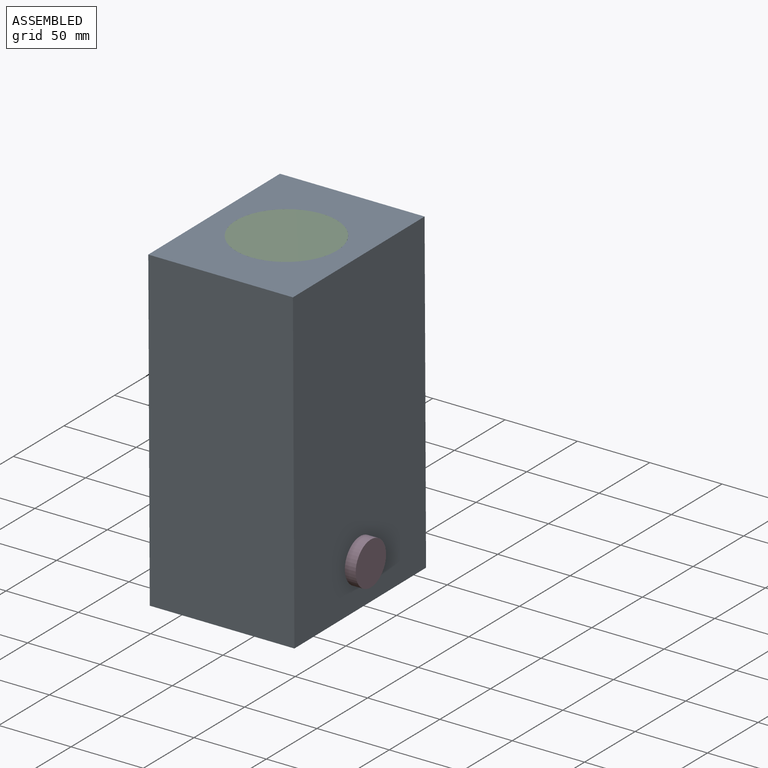
[diagram: assembled view]
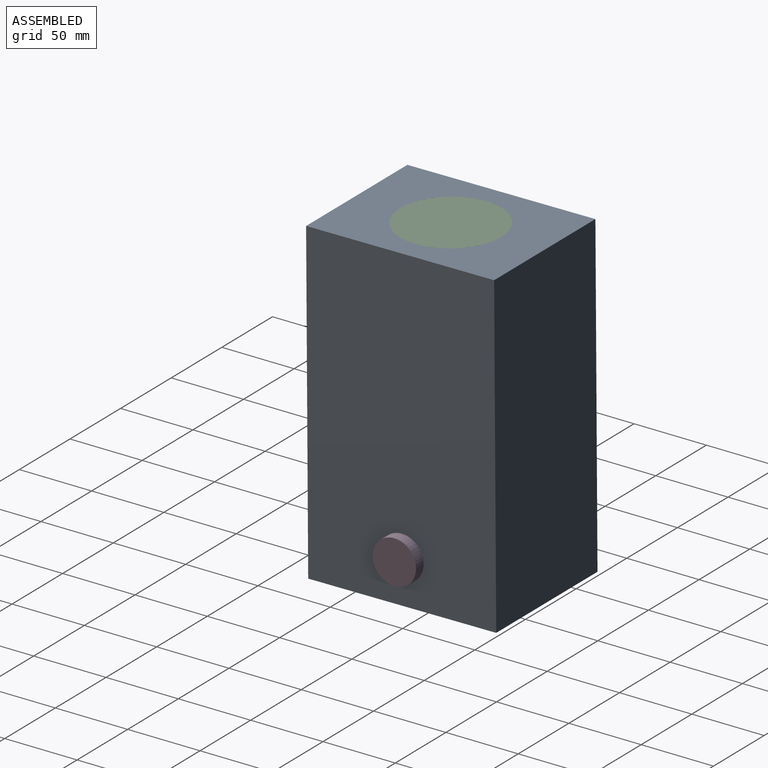
[diagram: assembled view, second angle]
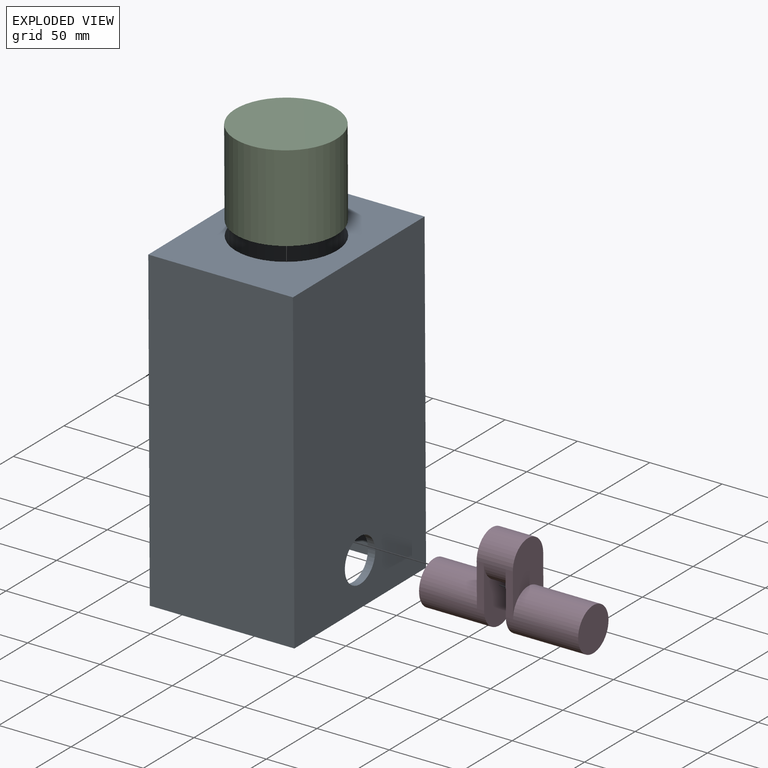
[diagram: exploded view]
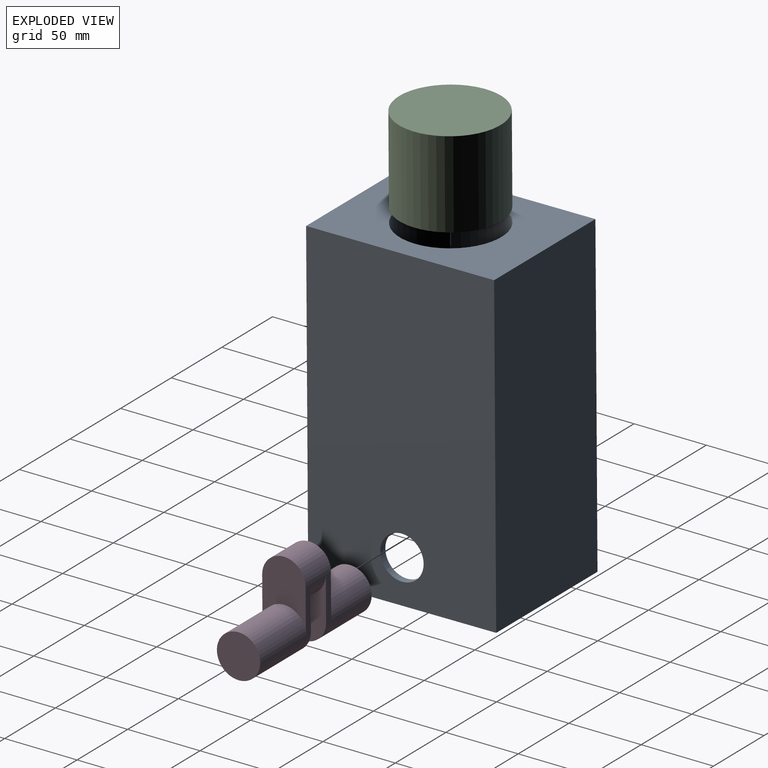
[diagram: exploded view, second angle]
ASSEMBLY  parts=4 mates=4
PART A: 14 faces, bbox 100x130x220 mm
  f0: cylinder r=35mm len=155mm, axis (0,0,1), area 34086.3mm2, adj f5,f7
  f1: plane 220x100mm, normal (0,1,0), area 22000mm2, adj f2,f4,f5,f6
  f2: plane 220x130mm, normal (-1,0,0), area 27893.1mm2, adj f1,f3,f5,f6,f13
  f3: plane 220x100mm, normal (0,-1,0), area 22000mm2, adj f2,f4,f5,f6
  f4: plane 220x130mm, normal (1,0,0), area 27893.1mm2, adj f1,f3,f5,f6,f12
  f5: plane 130x100mm, normal (0,0,1), area 9151.5mm2, adj f0,f1,f2,f3,f4
  f6: plane 130x100mm, normal (0,0,-1), area 2200mm2, adj f1,f2,f3,f4,f8,f9,f10,f11
  f7: plane 120x90mm, normal (0,0,-1), area 6951.5mm2, adj f0,f8,f9,f10,f11
  f8: plane 120x65mm, normal (1,0,0), area 7093.1mm2, adj f6,f7,f9,f11,f13
  f9: plane 90x65mm, normal (0,-1,0), area 5850mm2, adj f6,f7,f8,f10
  f10: plane 120x65mm, normal (-1,0,0), area 7093.1mm2, adj f6,f7,f9,f11,f12
  f11: plane 90x65mm, normal (0,1,0), area 5850mm2, adj f6,f7,f8,f10
  f12: cylinder r=15mm len=30mm, axis (1,0,0), area 471.2mm2, adj f4,f10
  f13: cylinder r=15mm len=30mm, axis (1,0,0), area 471.2mm2, adj f2,f8
PART B: 8 faces, bbox 35x15x145 mm
  f0: extruded ~109.22x15mm, area 1652.1mm2, adj f1,f4,f6,f7
  f1: cylinder r=17.5mm len=35mm, axis (0,1,0), area 1107.5mm2, adj f0,f2,f6,f7
  f2: extruded ~109.22x15mm, area 1652.1mm2, adj f1,f4,f6,f7
  f3: cylinder r=15mm len=30mm, axis (0,1,0), area 1413.7mm2, adj f6,f7
  f4: cylinder r=7.5mm len=15mm, axis (0,1,0), area 408mm2, adj f0,f2,f6,f7
  f5: cylinder r=5mm len=15mm, axis (0,1,0), area 471.2mm2, adj f6,f7
  f6: plane 145x35mm, normal (0,-1,0), area 1792.4mm2, adj f0,f1,f2,f3,f4,f5
  f7: plane 145x35mm, normal (0,1,0), area 1792.4mm2, adj f0,f1,f2,f3,f4,f5
PART C: 9 faces, bbox 70x70x60 mm
  f0: cylinder r=35mm len=70mm, axis (0,0,-1), area 13194.7mm2, adj f1,f2
  f1: plane 70x70mm, normal (0,0,1), area 3848.5mm2, adj f0
  f2: plane 70x70mm, normal (0,0,-1), area 1021mm2, adj f0,f3
  f3: cylinder r=30mm len=60mm, axis (0,0,-1), area 10210.5mm2, adj f2,f4,f5
  f4: plane 60x60mm, normal (0,0,-1), area 2827.4mm2, adj f3
  f5: cylinder r=5mm len=60mm, axis (0,1,0), area 1714.7mm2, adj f3,f6,f7,f8
  f6: plane 10x10mm, normal (0,0,1), area 100mm2, adj f5,f7,f8
  f7: plane 10x5mm, normal (0,-1,0), area 39.3mm2, adj f5,f6
  f8: plane 10x5mm, normal (0,1,0), area 39.3mm2, adj f5,f6
PART D: 13 faces, bbox 110x30x60 mm
  f0: plane 45x30mm, normal (1,0,0), area 900mm2, adj f5,f9,f10,f11
  f1: cylinder r=15mm len=45mm, axis (-1,0,0), area 4005.5mm2, adj f2,f3,f4,f6,f7
  f2: plane 30x30mm, normal (-1,0,0), area 706.9mm2, adj f1
  f3: plane 45x30mm, normal (-1,0,0), area 900mm2, adj f1,f4,f5,f6
  f4: plane 30x5mm, normal (0,1,0), area 150mm2, adj f1,f3,f5,f7
  f5: cylinder r=15mm len=30mm, axis (-1,0,0), area 1885mm2, adj f0,f3,f4,f6,f7,f8,f9,f11
  f6: plane 30x5mm, normal (0,-1,0), area 150mm2, adj f1,f3,f5,f7
  f7: plane 45x30mm, normal (1,0,0), area 900mm2, adj f1,f4,f5,f6
  f8: plane 45x30mm, normal (-1,0,0), area 900mm2, adj f5,f9,f10,f11
  f9: plane 30x5mm, normal (0,-1,0), area 150mm2, adj f0,f5,f8,f10
  f10: cylinder r=15mm len=50mm, axis (-1,0,0), area 4476.8mm2, adj f0,f8,f9,f11,f12
  f11: plane 30x5mm, normal (0,1,0), area 150mm2, adj f0,f5,f8,f10
  f12: plane 30x30mm, normal (1,0,0), area 706.9mm2, adj f10
PLACE A rot(axis=(1,0,0),0.4deg) t=(-180.53,177.79,-99.17)mm fixed
PLACE B rot(axis=(0,0,-1),90deg) t=(-209.24,188.04,-24.18)mm
PLACE C rot(axis=(0,0,-1),90deg) t=(-227.71,75.28,60.15)mm
PLACE D rot(axis=(1,0,0),0.4deg) t=(-269.24,189.3,-71.15)mm
MATE revolute B.f1 <-> D.f5  axis (1,0,0) through (-216.74,187.68,-39.1)mm
MATE revolute C.f5 <-> B.f4  axis (1,0,0) through (-216.74,186.89,80.89)mm
MATE revolute D.f1 <-> A.f12  axis (-1,0,0) through (-159.24,187.88,-69.1)mm
MATE slider C.f0 <-> A.f0  axis (0,0.01,-1) through (-216.74,186.62,120.89)mm
